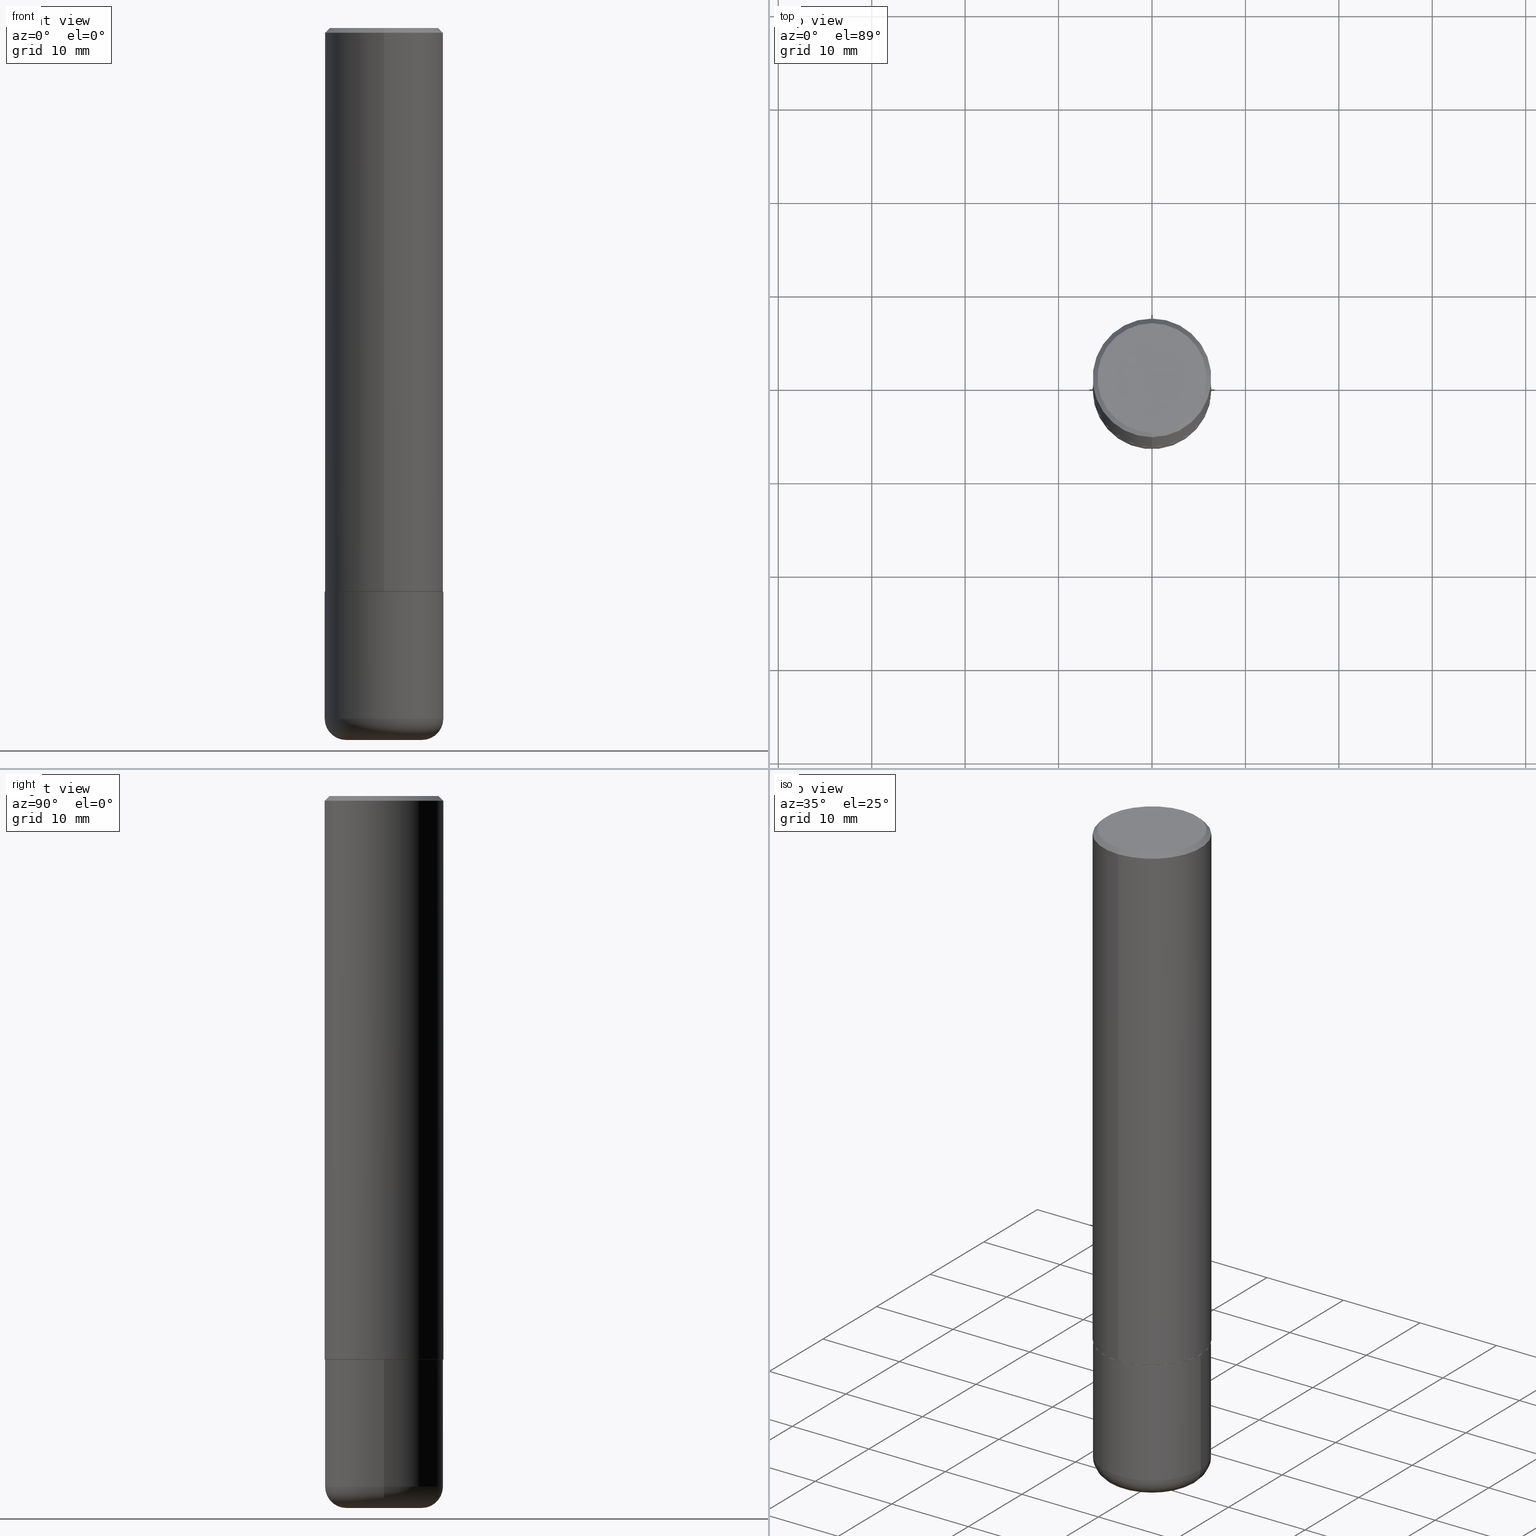
[diagram: canonical four-view strip — front | top / right | iso, engineering-drawing reading convention]
A machine part, canonical four-view strip (front | top / right | iso — engineering-drawing reading convention). The complete STEP part file that produces these views, byte-faithful:
ISO-10303-21;
HEADER;
FILE_DESCRIPTION (( 'STEP AP203' ),
    '1' );
FILE_NAME ('38536.STEP',
    '2024-03-03T03:38:36',
    ( '' ),
    ( '' ),
    'SwSTEP 2.0',
    'SolidWorks 2023',
    '' );
FILE_SCHEMA (( 'CONFIG_CONTROL_DESIGN' ));
ENDSEC;

DATA;
#1 = COORDINATED_UNIVERSAL_TIME_OFFSET ( 5, 0, .BEHIND. ) ;
#2 = DIRECTION ( 'NONE',  ( 1.000000000000000000, -6.982962677686266711E-15, 4.876176775795935793E-29 ) ) ;
#3 = PERSON_AND_ORGANIZATION ( #64, #338 ) ;
#4 = VECTOR ( 'NONE', #28, 39.37007874015748143 ) ;
#5 = CIRCLE ( 'NONE', #305, 0.2500000000000000000 ) ;
#6 = CARTESIAN_POINT ( 'NONE',  ( 7.116314225998749245E-29, -1.016021069603355467E-14, -2.910000000000000586 ) ) ;
#7 = EDGE_LOOP ( 'NONE', ( #324, #133 ) ) ;
#8 = APPROVAL_ROLE ( '' ) ;
#9 = CARTESIAN_POINT ( 'NONE',  ( 1.769251412042707241E-15, 0.2489999999999917002, -2.375000000000001332 ) ) ;
#10 = ORIENTED_EDGE ( 'NONE', *, *, #316, .T. ) ;
#11 = APPROVAL_ROLE ( '' ) ;
#12 = CARTESIAN_POINT ( 'NONE',  ( 0.1600000000000000033, -1.127748472446335797E-14, -2.910000000000000586 ) ) ;
#13 = ORIENTED_EDGE ( 'NONE', *, *, #195, .F. ) ;
#14 = LINE ( 'NONE', #205, #52 ) ;
#15 = VERTEX_POINT ( 'NONE', #150 ) ;
#16 = AXIS2_PLACEMENT_3D ( 'NONE', #144, #278, #414 ) ;
#17 = CC_DESIGN_APPROVAL ( #160, ( #186 ) ) ;
#18 = CC_DESIGN_DATE_AND_TIME_ASSIGNMENT ( #251, #392, ( #186 ) ) ;
#19 = DESIGN_CONTEXT ( 'detailed design', #191, 'design' ) ;
#20 = VECTOR ( 'NONE', #389, 39.37007874015748143 ) ;
#21 = PLANE ( 'NONE',  #337 ) ;
#22 = FACE_OUTER_BOUND ( 'NONE', #163, .T. ) ;
#23 = EDGE_CURVE ( 'NONE', #15, #108, #239, .T. ) ;
#24 = FACE_OUTER_BOUND ( 'NONE', #140, .T. ) ;
#25 = AXIS2_PLACEMENT_3D ( 'NONE', #162, #161, #127 ) ;
#26 = CIRCLE ( 'NONE', #283, 0.2500000000000000000 ) ;
#27 = DIRECTION ( 'NONE',  ( -6.982962677686266711E-15, -1.000000000000000000, 3.491481338843145583E-15 ) ) ;
#28 = DIRECTION ( 'NONE',  ( -2.444433044876418787E-29, 3.492964607989102264E-15, 1.000000000000000000 ) ) ;
#29 = PRODUCT_RELATED_PRODUCT_CATEGORY ( 'detail', '', ( #381 ) ) ;
#30 = DIRECTION ( 'NONE',  ( -6.982962677686265922E-15, -1.000000000000000000, 3.500180241882337261E-15 ) ) ;
#31 = DIRECTION ( 'NONE',  ( -2.445468806185136597E-29, 3.491481338843145583E-15, 1.000000000000000000 ) ) ;
#32 = FACE_OUTER_BOUND ( 'NONE', #81, .T. ) ;
#33 = AXIS2_PLACEMENT_3D ( 'NONE', #323, #293, #46 ) ;
#34 = APPROVAL_STATUS ( 'not_yet_approved' ) ;
#35 = LOCAL_TIME ( 22, 38, 36.00000000000000000, #355 ) ;
#36 = ADVANCED_BREP_SHAPE_REPRESENTATION ( '38536', ( #275, #413, #368 ), #69 ) ;
#37 = ADVANCED_FACE ( 'NONE', ( #335 ), #84, .T. ) ;
#38 = CARTESIAN_POINT ( 'NONE',  ( 5.803084048536618741E-29, -8.292297979366129591E-15, -2.374000000000000110 ) ) ;
#39 = EDGE_LOOP ( 'NONE', ( #49, #243 ) ) ;
#40 = PERSON_AND_ORGANIZATION ( #64, #338 ) ;
#41 = AXIS2_PLACEMENT_3D ( 'NONE', #145, #196, #55 ) ;
#42 = AXIS2_PLACEMENT_3D ( 'NONE', #94, #310, #149 ) ;
#43 = CARTESIAN_POINT ( 'NONE',  ( -1.738757706743822090E-15, -0.2490000000000082980, -2.374999999999999556 ) ) ;
#44 = ORIENTED_EDGE ( 'NONE', *, *, #252, .T. ) ;
#45 = APPROVAL ( #158, 'UNSPECIFIED' ) ;
#46 = DIRECTION ( 'NONE',  ( 1.000000000000000000, -6.982962677686266711E-15, 0.000000000000000000 ) ) ;
#47 = ORIENTED_EDGE ( 'NONE', *, *, #126, .T. ) ;
#48 = CARTESIAN_POINT ( 'NONE',  ( 1.776356839400280836E-15, 0.2499999999999919786, -2.374000000000000998 ) ) ;
#49 = ORIENTED_EDGE ( 'NONE', *, *, #59, .F. ) ;
#50 = VERTEX_POINT ( 'NONE', #60 ) ;
#51 = TOROIDAL_SURFACE ( 'NONE', #334, 0.1600000000000000033, 0.08999999999999964972 ) ;
#52 = VECTOR ( 'NONE', #130, 39.37007874015748143 ) ;
#53 = ORIENTED_EDGE ( 'NONE', *, *, #235, .T. ) ;
#54 = EDGE_CURVE ( 'NONE', #370, #394, #230, .T. ) ;
#55 = DIRECTION ( 'NONE',  ( 6.982962677686265922E-15, 1.000000000000000000, -3.500180241882337261E-15 ) ) ;
#56 = CARTESIAN_POINT ( 'NONE',  ( -1.745740669421567467E-15, -0.2500000000000001110, 8.732411519972759604E-16 ) ) ;
#57 = CYLINDRICAL_SURFACE ( 'NONE', #373, 0.2500000000000000000 ) ;
#58 =( NAMED_UNIT ( * ) PLANE_ANGLE_UNIT ( ) SI_UNIT ( $, .RADIAN. ) );
#59 = EDGE_CURVE ( 'NONE', #402, #222, #249, .T. ) ;
#60 = CARTESIAN_POINT ( 'NONE',  ( 0.2499999999999998335, -1.190595136545512292E-14, -2.910000000000000586 ) ) ;
#61 = CARTESIAN_POINT ( 'NONE',  ( 0.1600000000000000033, -1.159171804495923808E-14, -2.999999999999999556 ) ) ;
#62 = CARTESIAN_POINT ( 'NONE',  ( 7.116314225998749245E-29, -1.016021069603355467E-14, -2.910000000000000586 ) ) ;
#63 = CARTESIAN_POINT ( 'NONE',  ( 1.745740669421566875E-15, 0.2499999999999999167, -0.02000000000000093023 ) ) ;
#64 = PERSON ( 'UNSPECIFIED', 'UNSPECIFIED', 'UNSPECIFIED', ('UNSPECIFIED'), ('UNSPECIFIED'), ('UNSPECIFIED') ) ;
#65 = DIRECTION ( 'NONE',  ( -2.444433044876418787E-29, 3.492964607989102264E-15, 1.000000000000000000 ) ) ;
#66 = ADVANCED_FACE ( 'NONE', ( #122 ), #288, .T. ) ;
#67 = CIRCLE ( 'NONE', #300, 0.1600000000000000033 ) ;
#68 = DATE_TIME_ROLE ( 'classification_date' ) ;
#69 =( GEOMETRIC_REPRESENTATION_CONTEXT ( 3 ) GLOBAL_UNCERTAINTY_ASSIGNED_CONTEXT ( ( #408 ) ) GLOBAL_UNIT_ASSIGNED_CONTEXT ( ( #146, #58, #361 ) ) REPRESENTATION_CONTEXT ( 'NONE', 'WORKASPACE' ) );
#70 = SHAPE_DEFINITION_REPRESENTATION ( #352, #36 ) ;
#71 = ORIENTED_EDGE ( 'NONE', *, *, #286, .F. ) ;
#72 = SECURITY_CLASSIFICATION_LEVEL ( 'unclassified' ) ;
#73 = EDGE_CURVE ( 'NONE', #15, #256, #119, .T. ) ;
#74 = DIRECTION ( 'NONE',  ( -6.982962677686265922E-15, -1.000000000000000000, 3.492964607989102264E-15 ) ) ;
#75 = ORIENTED_EDGE ( 'NONE', *, *, #219, .F. ) ;
#76 = DATE_AND_TIME ( #132, #411 ) ;
#77 = AXIS2_PLACEMENT_3D ( 'NONE', #38, #65, #214 ) ;
#78 = CARTESIAN_POINT ( 'NONE',  ( -1.715124499442882299E-15, -0.2500000000000000555, -0.01999999999999918163 ) ) ;
#79 = ORIENTED_EDGE ( 'NONE', *, *, #154, .F. ) ;
#80 = FACE_OUTER_BOUND ( 'NONE', #341, .T. ) ;
#81 = EDGE_LOOP ( 'NONE', ( #10, #53, #109, #75 ) ) ;
#82 = ORIENTED_EDGE ( 'NONE', *, *, #147, .F. ) ;
#83 = ADVANCED_FACE ( 'NONE', ( #183 ), #417, .T. ) ;
#84 = CONICAL_SURFACE ( 'NONE', #236, 0.2500000000000000000, 0.7853981633974468357 ) ;
#85 = CC_DESIGN_APPROVAL ( #45, ( #143 ) ) ;
#86 = DIRECTION ( 'NONE',  ( -2.444433044876418506E-29, 3.492964607989102264E-15, 1.000000000000000000 ) ) ;
#87 = CARTESIAN_POINT ( 'NONE',  ( 5.805528481581495949E-29, -8.295790943974119208E-15, -2.375000000000000444 ) ) ;
#88 = AXIS2_PLACEMENT_3D ( 'NONE', #340, #152, #418 ) ;
#89 = CARTESIAN_POINT ( 'NONE',  ( 4.888866089752851166E-31, -6.985929215978223263E-17, -0.02000000000000005593 ) ) ;
#90 = CC_DESIGN_PERSON_AND_ORGANIZATION_ASSIGNMENT ( #327, #220, ( #186 ) ) ;
#91 = FACE_OUTER_BOUND ( 'NONE', #39, .T. ) ;
#92 = DIRECTION ( 'NONE',  ( -6.982962677686266711E-15, -1.000000000000000000, 3.492964607989102264E-15 ) ) ;
#93 = LOCAL_TIME ( 22, 38, 36.00000000000000000, #231 ) ;
#94 = CARTESIAN_POINT ( 'NONE',  ( 1.606081415867840476E-15, 0.2299999999999998990, -7.541233902495533824E-16 ) ) ;
#95 = ADVANCED_FACE ( 'NONE', ( #32 ), #410, .T. ) ;
#96 = APPLICATION_PROTOCOL_DEFINITION ( 'international standard', 'config_control_design', 1994, #209 ) ;
#97 = ORIENTED_EDGE ( 'NONE', *, *, #276, .T. ) ;
#98 = APPROVAL_DATE_TIME ( #76, #176 ) ;
#99 = EDGE_CURVE ( 'NONE', #261, #197, #242, .T. ) ;
#100 = DIRECTION ( 'NONE',  ( 1.000000000000000000, -6.982962677686271444E-15, 0.000000000000000000 ) ) ;
#101 = ORIENTED_EDGE ( 'NONE', *, *, #219, .T. ) ;
#102 = CALENDAR_DATE ( 2024, 2, 3 ) ;
#103 = CARTESIAN_POINT ( 'NONE',  ( 5.807988414689700538E-29, -8.292268179752471696E-15, -2.375000000000000000 ) ) ;
#104 = VERTEX_POINT ( 'NONE', #284 ) ;
#105 = PERSON_AND_ORGANIZATION ( #64, #338 ) ;
#106 = APPROVAL_PERSON_ORGANIZATION ( #105, #176, #8 ) ;
#107 = LINE ( 'NONE', #400, #345 ) ;
#108 = VERTEX_POINT ( 'NONE', #124 ) ;
#109 = ORIENTED_EDGE ( 'NONE', *, *, #73, .F. ) ;
#110 = ADVANCED_FACE ( 'NONE', ( #387 ), #51, .T. ) ;
#111 = AXIS2_PLACEMENT_3D ( 'NONE', #115, #204, #280 ) ;
#112 = AXIS2_PLACEMENT_3D ( 'NONE', #12, #27, #121 ) ;
#113 = EDGE_CURVE ( 'NONE', #104, #108, #289, .T. ) ;
#114 = ORIENTED_EDGE ( 'NONE', *, *, #99, .F. ) ;
#115 = CARTESIAN_POINT ( 'NONE',  ( 7.336406418555408669E-29, -1.047444401652943478E-14, -2.999999999999999556 ) ) ;
#116 = FACE_OUTER_BOUND ( 'NONE', #303, .T. ) ;
#117 = CARTESIAN_POINT ( 'NONE',  ( -2.408180616015999705E-45, 3.441161818287620017E-31, 9.851693917587945798E-17 ) ) ;
#118 = ORIENTED_EDGE ( 'NONE', *, *, #235, .F. ) ;
#119 = CIRCLE ( 'NONE', #77, 0.2500000000000002776 ) ;
#120 = VECTOR ( 'NONE', #181, 39.37007874015748143 ) ;
#121 = DIRECTION ( 'NONE',  ( 1.000000000000000000, -6.982962677686273810E-15, 0.000000000000000000 ) ) ;
#122 = FACE_OUTER_BOUND ( 'NONE', #265, .T. ) ;
#123 = DIRECTION ( 'NONE',  ( -6.982962677686265922E-15, -1.000000000000000000, 3.500180241882337261E-15 ) ) ;
#124 = CARTESIAN_POINT ( 'NONE',  ( -1.715124499442882299E-15, -0.2500000000000000555, -0.01999999999999918163 ) ) ;
#125 = CARTESIAN_POINT ( 'NONE',  ( 0.000000000000000000, 0.000000000000000000, 0.000000000000000000 ) ) ;
#126 = EDGE_CURVE ( 'NONE', #222, #402, #67, .T. ) ;
#127 = DIRECTION ( 'NONE',  ( -6.982962677686265133E-15, -1.000000000000000000, 3.291383124896702687E-15 ) ) ;
#128 = ADVANCED_FACE ( 'NONE', ( #116 ), #296, .F. ) ;
#129 = APPROVAL_DATE_TIME ( #285, #45 ) ;
#130 = DIRECTION ( 'NONE',  ( -2.445468806185136877E-29, 3.491481338843145188E-15, 1.000000000000000000 ) ) ;
#131 = EDGE_LOOP ( 'NONE', ( #118, #190, #101, #329 ) ) ;
#132 = CALENDAR_DATE ( 2024, 2, 3 ) ;
#133 = ORIENTED_EDGE ( 'NONE', *, *, #54, .T. ) ;
#134 = PERSON_AND_ORGANIZATION_ROLE ( 'creator' ) ;
#135 = CARTESIAN_POINT ( 'NONE',  ( -0.1600000000000000033, -9.023342318817394938E-15, -2.910000000000000586 ) ) ;
#136 = TOROIDAL_SURFACE ( 'NONE', #244, 0.1600000000000000033, 0.08999999999999964972 ) ;
#137 = ADVANCED_FACE ( 'NONE', ( #298 ), #21, .F. ) ;
#138 = CARTESIAN_POINT ( 'NONE',  ( -0.1600000000000000033, -8.860714747973291991E-15, -2.999999999999999556 ) ) ;
#139 = EDGE_LOOP ( 'NONE', ( #167, #360, #333, #363 ) ) ;
#140 = EDGE_LOOP ( 'NONE', ( #79, #47, #367, #13 ) ) ;
#141 = VECTOR ( 'NONE', #193, 39.37007874015748854 ) ;
#142 = EDGE_LOOP ( 'NONE', ( #215, #194, #174, #233 ) ) ;
#143 = PRODUCT_DEFINITION_FORMATION_WITH_SPECIFIED_SOURCE ( 'ANY', '', #381, .NOT_KNOWN. ) ;
#144 = CARTESIAN_POINT ( 'NONE',  ( 5.807988414689700538E-29, -8.292268179752471696E-15, -2.375000000000000000 ) ) ;
#145 = CARTESIAN_POINT ( 'NONE',  ( 4.888866089752851166E-31, -6.985929215978223263E-17, -0.02000000000000005593 ) ) ;
#146 =( CONVERSION_BASED_UNIT ( 'INCH', #350 ) LENGTH_UNIT ( ) NAMED_UNIT ( #153 ) );
#147 = EDGE_CURVE ( 'NONE', #50, #394, #107, .T. ) ;
#148 = EDGE_LOOP ( 'NONE', ( #346, #44, #172, #225 ) ) ;
#149 = DIRECTION ( 'NONE',  ( 6.982962677686265922E-15, 1.000000000000000000, -3.492964607989102264E-15 ) ) ;
#150 = CARTESIAN_POINT ( 'NONE',  ( -1.745740669421510471E-15, -0.2500000000000085487, -2.373999999999999222 ) ) ;
#151 = CARTESIAN_POINT ( 'NONE',  ( 4.888866089752851166E-31, -6.985929215978223263E-17, -0.02000000000000005593 ) ) ;
#152 = DIRECTION ( 'NONE',  ( 2.438088387897960049E-29, -3.491481338843145188E-15, -1.000000000000000000 ) ) ;
#153 = DIMENSIONAL_EXPONENTS ( 1.000000000000000000, 0.000000000000000000, 0.000000000000000000, 0.000000000000000000, 0.000000000000000000, 0.000000000000000000, 0.000000000000000000 ) ;
#154 = EDGE_CURVE ( 'NONE', #222, #187, #157, .T. ) ;
#155 = DIRECTION ( 'NONE',  ( -6.982962677686265133E-15, -1.000000000000000000, 3.291383124896702687E-15 ) ) ;
#156 = DIRECTION ( 'NONE',  ( -2.444433044876418787E-29, 3.492964607989102264E-15, 1.000000000000000000 ) ) ;
#157 = CIRCLE ( 'NONE', #164, 0.08999999999999964972 ) ;
#158 = APPROVAL_STATUS ( 'not_yet_approved' ) ;
#159 = CALENDAR_DATE ( 2024, 2, 3 ) ;
#160 = APPROVAL ( #34, 'UNSPECIFIED' ) ;
#161 = DIRECTION ( 'NONE',  ( -2.444433044876418787E-29, 3.492964607989102264E-15, 1.000000000000000000 ) ) ;
#162 = CARTESIAN_POINT ( 'NONE',  ( 5.805528481581495949E-29, -8.295790943974119208E-15, -2.375000000000000444 ) ) ;
#163 = EDGE_LOOP ( 'NONE', ( #390, #321 ) ) ;
#164 = AXIS2_PLACEMENT_3D ( 'NONE', #135, #336, #179 ) ;
#165 = CC_DESIGN_APPROVAL ( #176, ( #202 ) ) ;
#166 = DIRECTION ( 'NONE',  ( -6.982962677686265922E-15, -1.000000000000000000, 3.278217592397112312E-15 ) ) ;
#167 = ORIENTED_EDGE ( 'NONE', *, *, #252, .F. ) ;
#168 = APPROVAL_DATE_TIME ( #358, #160 ) ;
#169 = CARTESIAN_POINT ( 'NONE',  ( 7.336406418555408669E-29, -1.047444401652943478E-14, -2.999999999999999556 ) ) ;
#170 = EDGE_LOOP ( 'NONE', ( #234, #297, #391, #273 ) ) ;
#171 = CARTESIAN_POINT ( 'NONE',  ( -0.2499999999999998335, -8.383853856633305780E-15, -2.910000000000000586 ) ) ;
#172 = ORIENTED_EDGE ( 'NONE', *, *, #332, .F. ) ;
#173 = AXIS2_PLACEMENT_3D ( 'NONE', #348, #351, #2 ) ;
#174 = ORIENTED_EDGE ( 'NONE', *, *, #147, .T. ) ;
#175 = ORIENTED_EDGE ( 'NONE', *, *, #286, .T. ) ;
#176 = APPROVAL ( #253, 'UNSPECIFIED' ) ;
#177 = DIRECTION ( 'NONE',  ( -2.445468806185136597E-29, 3.491481338843145583E-15, 1.000000000000000000 ) ) ;
#178 = CIRCLE ( 'NONE', #318, 0.2500000000000002776 ) ;
#179 = DIRECTION ( 'NONE',  ( -1.000000000000000000, 7.105427357600996337E-15, 0.000000000000000000 ) ) ;
#180 = DIRECTION ( 'NONE',  ( 1.000000000000000000, -6.982962677686266711E-15, 4.876176775795935793E-29 ) ) ;
#181 = DIRECTION ( 'NONE',  ( 4.937700262164540154E-15, 0.7071067811865440200, -0.7071067811865510144 ) ) ;
#182 = DIRECTION ( 'NONE',  ( 1.000000000000000000, -6.982962677686265133E-15, 4.883557194083112340E-29 ) ) ;
#183 = FACE_OUTER_BOUND ( 'NONE', #139, .T. ) ;
#184 = AXIS2_PLACEMENT_3D ( 'NONE', #315, #221, #319 ) ;
#185 = CALENDAR_DATE ( 2024, 2, 3 ) ;
#186 = PRODUCT_DEFINITION ( 'UNKNOWN', '', #143, #19 ) ;
#187 = VERTEX_POINT ( 'NONE', #171 ) ;
#188 = PERSON_AND_ORGANIZATION ( #64, #338 ) ;
#189 = CARTESIAN_POINT ( 'NONE',  ( 1.776356839400251254E-15, 0.2500000000000001110, -8.732411519972759604E-16 ) ) ;
#190 = ORIENTED_EDGE ( 'NONE', *, *, #99, .T. ) ;
#191 = APPLICATION_CONTEXT ( 'configuration controlled 3d designs of mechanical parts and assemblies' ) ;
#192 = AXIS2_PLACEMENT_3D ( 'NONE', #87, #260, #359 ) ;
#193 = DIRECTION ( 'NONE',  ( 5.024295867787889629E-15, 0.7071067811865257013, 0.7071067811865691111 ) ) ;
#194 = ORIENTED_EDGE ( 'NONE', *, *, #195, .T. ) ;
#195 = EDGE_CURVE ( 'NONE', #187, #50, #325, .T. ) ;
#196 = DIRECTION ( 'NONE',  ( 2.444433044876418787E-29, -3.492964607989102264E-15, -1.000000000000000000 ) ) ;
#197 = VERTEX_POINT ( 'NONE', #362 ) ;
#198 = ORIENTED_EDGE ( 'NONE', *, *, #396, .F. ) ;
#199 = ORIENTED_EDGE ( 'NONE', *, *, #207, .T. ) ;
#200 = CLOSED_SHELL ( 'NONE', ( #66, #110, #137, #415, #343, #409 ) ) ;
#201 = ADVANCED_FACE ( 'NONE', ( #80 ), #213, .T. ) ;
#202 = SECURITY_CLASSIFICATION ( '', '', #72 ) ;
#203 = DIRECTION ( 'NONE',  ( -2.445468806185136877E-29, 3.491481338843145188E-15, 1.000000000000000000 ) ) ;
#204 = DIRECTION ( 'NONE',  ( -2.445468806185136597E-29, 3.491481338843145583E-15, 1.000000000000000000 ) ) ;
#205 = CARTESIAN_POINT ( 'NONE',  ( -0.2500000000000000000, 1.776356839400250465E-15, -1.229733772563726445E-29 ) ) ;
#206 = AXIS2_PLACEMENT_3D ( 'NONE', #228, #177, #306 ) ;
#207 = EDGE_CURVE ( 'NONE', #187, #370, #14, .T. ) ;
#208 = CARTESIAN_POINT ( 'NONE',  ( 0.000000000000000000, 0.000000000000000000, 0.000000000000000000 ) ) ;
#209 = APPLICATION_CONTEXT ( 'configuration controlled 3d designs of mechanical parts and assemblies' ) ;
#210 = DIRECTION ( 'NONE',  ( 2.444433044876418787E-29, -3.492964607989102264E-15, -1.000000000000000000 ) ) ;
#211 = CARTESIAN_POINT ( 'NONE',  ( 4.888866089752851166E-31, -6.985929215978223263E-17, -0.02000000000000005593 ) ) ;
#212 = CARTESIAN_POINT ( 'NONE',  ( -0.2500000000000000000, -7.449882598492762717E-15, -2.375000000000000000 ) ) ;
#213 = CONICAL_SURFACE ( 'NONE', #41, 0.2500000000000000000, 0.7853981633974468357 ) ;
#214 = DIRECTION ( 'NONE',  ( -6.982962677686265922E-15, -1.000000000000000000, 3.278217592397112312E-15 ) ) ;
#215 = ORIENTED_EDGE ( 'NONE', *, *, #207, .F. ) ;
#216 = APPLICATION_PROTOCOL_DEFINITION ( 'international standard', 'config_control_design', 1994, #191 ) ;
#217 = CARTESIAN_POINT ( 'NONE',  ( 5.805528481581495949E-29, -8.295790943974119208E-15, -2.375000000000000444 ) ) ;
#218 = AXIS2_PLACEMENT_3D ( 'NONE', #407, #31, #307 ) ;
#219 = EDGE_CURVE ( 'NONE', #197, #15, #238, .T. ) ;
#220 = PERSON_AND_ORGANIZATION_ROLE ( 'creator' ) ;
#221 = DIRECTION ( 'NONE',  ( -2.444433044876418787E-29, 3.492964607989102264E-15, 1.000000000000000000 ) ) ;
#222 = VERTEX_POINT ( 'NONE', #138 ) ;
#223 = DIRECTION ( 'NONE',  ( 1.000000000000000000, 0.000000000000000000, 0.000000000000000000 ) ) ;
#224 = DIRECTION ( 'NONE',  ( -1.000000000000000000, 6.982962677686265922E-15, -4.876176775795935793E-29 ) ) ;
#225 = ORIENTED_EDGE ( 'NONE', *, *, #23, .F. ) ;
#226 = PERSON_AND_ORGANIZATION ( #64, #338 ) ;
#227 = ADVANCED_FACE ( 'NONE', ( #330 ), #378, .T. ) ;
#228 = CARTESIAN_POINT ( 'NONE',  ( 7.116314225998749245E-29, -1.016021069603355467E-14, -2.910000000000000586 ) ) ;
#229 = ORIENTED_EDGE ( 'NONE', *, *, #113, .F. ) ;
#230 = CIRCLE ( 'NONE', #16, 0.2500000000000000000 ) ;
#231 = COORDINATED_UNIVERSAL_TIME_OFFSET ( 5, 0, .BEHIND. ) ;
#232 = CARTESIAN_POINT ( 'NONE',  ( 1.772804125721508928E-15, 0.2489999999999917280, -2.375000000000001332 ) ) ;
#233 = ORIENTED_EDGE ( 'NONE', *, *, #54, .F. ) ;
#234 = ORIENTED_EDGE ( 'NONE', *, *, #309, .F. ) ;
#235 = EDGE_CURVE ( 'NONE', #261, #256, #339, .T. ) ;
#236 = AXIS2_PLACEMENT_3D ( 'NONE', #151, #210, #342 ) ;
#237 = CIRCLE ( 'NONE', #326, 0.2489999999999999991 ) ;
#238 = LINE ( 'NONE', #43, #268 ) ;
#239 = LINE ( 'NONE', #56, #4 ) ;
#240 = EDGE_CURVE ( 'NONE', #256, #15, #178, .T. ) ;
#241 = DIRECTION ( 'NONE',  ( -2.444433044876418787E-29, 3.492964607989102264E-15, 1.000000000000000000 ) ) ;
#242 = CIRCLE ( 'NONE', #25, 0.2489999999999999991 ) ;
#243 = ORIENTED_EDGE ( 'NONE', *, *, #126, .F. ) ;
#244 = AXIS2_PLACEMENT_3D ( 'NONE', #62, #382, #182 ) ;
#245 = LINE ( 'NONE', #63, #120 ) ;
#246 = CC_DESIGN_DATE_AND_TIME_ASSIGNMENT ( #322, #68, ( #202 ) ) ;
#247 = CARTESIAN_POINT ( 'NONE',  ( 1.745740669421566875E-15, 0.2499999999999999167, -0.02000000000000093023 ) ) ;
#248 = PLANE ( 'NONE',  #88 ) ;
#249 = CIRCLE ( 'NONE', #111, 0.1600000000000000033 ) ;
#250 = CARTESIAN_POINT ( 'NONE',  ( -2.408180616015999705E-45, 3.441161818287620017E-31, 9.851693917587945798E-17 ) ) ;
#251 = DATE_AND_TIME ( #159, #263 ) ;
#252 = EDGE_CURVE ( 'NONE', #256, #302, #328, .T. ) ;
#253 = APPROVAL_STATUS ( 'not_yet_approved' ) ;
#254 = PERSON_AND_ORGANIZATION ( #64, #338 ) ;
#255 = CARTESIAN_POINT ( 'NONE',  ( 5.803084048536618741E-29, -8.292297979366129591E-15, -2.374000000000000110 ) ) ;
#256 = VERTEX_POINT ( 'NONE', #48 ) ;
#257 = MECHANICAL_CONTEXT ( 'NONE', #209, 'mechanical' ) ;
#258 = ORIENTED_EDGE ( 'NONE', *, *, #267, .F. ) ;
#259 = PERSON_AND_ORGANIZATION ( #64, #338 ) ;
#260 = DIRECTION ( 'NONE',  ( -2.444433044876418787E-29, 3.492964607989102264E-15, 1.000000000000000000 ) ) ;
#261 = VERTEX_POINT ( 'NONE', #232 ) ;
#262 = CIRCLE ( 'NONE', #112, 0.08999999999999964972 ) ;
#263 = LOCAL_TIME ( 22, 38, 36.00000000000000000, #1 ) ;
#264 = DIRECTION ( 'NONE',  ( -2.444433044876418787E-29, 3.492964607989102264E-15, 1.000000000000000000 ) ) ;
#265 = EDGE_LOOP ( 'NONE', ( #175, #199, #258, #82 ) ) ;
#266 = ORIENTED_EDGE ( 'NONE', *, *, #154, .T. ) ;
#267 = EDGE_CURVE ( 'NONE', #394, #370, #282, .T. ) ;
#268 = VECTOR ( 'NONE', #371, 39.37007874015748854 ) ;
#269 = CIRCLE ( 'NONE', #364, 0.2299999999999998990 ) ;
#270 = DIRECTION ( 'NONE',  ( 2.438088387897960049E-29, -3.491481338843145188E-15, -1.000000000000000000 ) ) ;
#271 = EDGE_CURVE ( 'NONE', #402, #50, #262, .T. ) ;
#272 = DIRECTION ( 'NONE',  ( -2.444433044876418787E-29, 3.492964607989102264E-15, 1.000000000000000000 ) ) ;
#273 = ORIENTED_EDGE ( 'NONE', *, *, #276, .F. ) ;
#274 = FACE_OUTER_BOUND ( 'NONE', #148, .T. ) ;
#275 = MANIFOLD_SOLID_BREP ( 'Body-Move/Copy2[1]', #200 ) ;
#276 = EDGE_CURVE ( 'NONE', #398, #302, #245, .T. ) ;
#277 = CARTESIAN_POINT ( 'NONE',  ( 0.2500000000000000000, -1.003800884917403837E-14, -2.375000000000000000 ) ) ;
#278 = DIRECTION ( 'NONE',  ( -2.445468806185136597E-29, 3.491481338843145583E-15, 1.000000000000000000 ) ) ;
#279 = FACE_OUTER_BOUND ( 'NONE', #142, .T. ) ;
#280 = DIRECTION ( 'NONE',  ( 1.000000000000000000, -6.982962677686271444E-15, 0.000000000000000000 ) ) ;
#281 = CARTESIAN_POINT ( 'NONE',  ( 5.805528481581495949E-29, -8.295790943974119208E-15, -2.375000000000000444 ) ) ;
#282 = CIRCLE ( 'NONE', #33, 0.2500000000000000000 ) ;
#283 = AXIS2_PLACEMENT_3D ( 'NONE', #89, #344, #123 ) ;
#284 = CARTESIAN_POINT ( 'NONE',  ( -1.646519519465166770E-15, -0.2299999999999998990, 9.018987990133727913E-16 ) ) ;
#285 = DATE_AND_TIME ( #292, #405 ) ;
#286 = EDGE_CURVE ( 'NONE', #50, #187, #311, .T. ) ;
#287 = DIRECTION ( 'NONE',  ( 0.000000000000000000, 0.000000000000000000, 1.000000000000000000 ) ) ;
#288 = CYLINDRICAL_SURFACE ( 'NONE', #173, 0.2500000000000000000 ) ;
#289 = LINE ( 'NONE', #78, #385 ) ;
#290 = AXIS2_PLACEMENT_3D ( 'NONE', #365, #86, #74 ) ;
#291 = AXIS2_PLACEMENT_3D ( 'NONE', #208, #377, #92 ) ;
#292 = CALENDAR_DATE ( 2024, 2, 3 ) ;
#293 = DIRECTION ( 'NONE',  ( -2.445468806185136597E-29, 3.491481338843145583E-15, 1.000000000000000000 ) ) ;
#294 = ORIENTED_EDGE ( 'NONE', *, *, #271, .F. ) ;
#295 = CARTESIAN_POINT ( 'NONE',  ( 0.000000000000000000, 0.000000000000000000, 0.000000000000000000 ) ) ;
#296 = PLANE ( 'NONE',  #290 ) ;
#297 = ORIENTED_EDGE ( 'NONE', *, *, #113, .T. ) ;
#298 = FACE_OUTER_BOUND ( 'NONE', #7, .T. ) ;
#299 = ORIENTED_EDGE ( 'NONE', *, *, #375, .T. ) ;
#300 = AXIS2_PLACEMENT_3D ( 'NONE', #169, #406, #100 ) ;
#301 = APPROVAL_PERSON_ORGANIZATION ( #226, #45, #388 ) ;
#302 = VERTEX_POINT ( 'NONE', #247 ) ;
#303 = EDGE_LOOP ( 'NONE', ( #401, #114 ) ) ;
#304 = CC_DESIGN_PERSON_AND_ORGANIZATION_ASSIGNMENT ( #3, #134, ( #143 ) ) ;
#305 = AXIS2_PLACEMENT_3D ( 'NONE', #211, #312, #30 ) ;
#306 = DIRECTION ( 'NONE',  ( 1.000000000000000000, -6.982962677686270655E-15, 0.000000000000000000 ) ) ;
#307 = DIRECTION ( 'NONE',  ( 1.000000000000000000, -6.982962677686270655E-15, 0.000000000000000000 ) ) ;
#308 =( LENGTH_UNIT ( ) NAMED_UNIT ( * ) SI_UNIT ( $, .METRE. ) );
#309 = EDGE_CURVE ( 'NONE', #104, #398, #386, .T. ) ;
#310 = DIRECTION ( 'NONE',  ( 2.444433044876418506E-29, -3.492964607989102264E-15, -1.000000000000000000 ) ) ;
#311 = CIRCLE ( 'NONE', #218, 0.2500000000000000000 ) ;
#312 = DIRECTION ( 'NONE',  ( -2.444433044876418787E-29, 3.492964607989102264E-15, 1.000000000000000000 ) ) ;
#313 = DIRECTION ( 'NONE',  ( -6.982962677686265133E-15, -1.000000000000000000, 3.291383124896702687E-15 ) ) ;
#314 = DIRECTION ( 'NONE',  ( -6.982962677686265922E-15, -1.000000000000000000, 3.492964607989102264E-15 ) ) ;
#315 = CARTESIAN_POINT ( 'NONE',  ( 0.000000000000000000, 0.000000000000000000, 0.000000000000000000 ) ) ;
#316 = EDGE_CURVE ( 'NONE', #197, #261, #237, .T. ) ;
#317 = PERSON_AND_ORGANIZATION_ROLE ( 'design_owner' ) ;
#318 = AXIS2_PLACEMENT_3D ( 'NONE', #255, #264, #166 ) ;
#319 = DIRECTION ( 'NONE',  ( -6.982962677686266711E-15, -1.000000000000000000, 3.492964607989102264E-15 ) ) ;
#320 = CC_DESIGN_PERSON_AND_ORGANIZATION_ASSIGNMENT ( #259, #353, ( #202 ) ) ;
#321 = ORIENTED_EDGE ( 'NONE', *, *, #309, .T. ) ;
#322 = DATE_AND_TIME ( #185, #35 ) ;
#323 = CARTESIAN_POINT ( 'NONE',  ( 5.807988414689700538E-29, -8.292268179752471696E-15, -2.375000000000000000 ) ) ;
#324 = ORIENTED_EDGE ( 'NONE', *, *, #267, .T. ) ;
#325 = CIRCLE ( 'NONE', #206, 0.2500000000000000000 ) ;
#326 = AXIS2_PLACEMENT_3D ( 'NONE', #281, #272, #155 ) ;
#327 = PERSON_AND_ORGANIZATION ( #64, #338 ) ;
#328 = LINE ( 'NONE', #189, #20 ) ;
#329 = ORIENTED_EDGE ( 'NONE', *, *, #240, .F. ) ;
#330 = FACE_OUTER_BOUND ( 'NONE', #131, .T. ) ;
#331 = EDGE_LOOP ( 'NONE', ( #357, #266, #71, #294 ) ) ;
#332 = EDGE_CURVE ( 'NONE', #108, #302, #5, .T. ) ;
#333 = ORIENTED_EDGE ( 'NONE', *, *, #23, .T. ) ;
#334 = AXIS2_PLACEMENT_3D ( 'NONE', #6, #397, #393 ) ;
#335 = FACE_OUTER_BOUND ( 'NONE', #170, .T. ) ;
#336 = DIRECTION ( 'NONE',  ( 7.105427357601001859E-15, 1.000000000000000000, -3.491481338843145583E-15 ) ) ;
#337 = AXIS2_PLACEMENT_3D ( 'NONE', #103, #270, #224 ) ;
#338 = ORGANIZATION ( 'UNSPECIFIED', 'UNSPECIFIED', '' ) ;
#339 = LINE ( 'NONE', #9, #141 ) ;
#340 = CARTESIAN_POINT ( 'NONE',  ( 1.449005363638153220E-28, -2.300140402884442060E-16, -2.999999999999999556 ) ) ;
#341 = EDGE_LOOP ( 'NONE', ( #229, #198, #97, #299 ) ) ;
#342 = DIRECTION ( 'NONE',  ( 6.982962677686265922E-15, 1.000000000000000000, -3.500180241882337261E-15 ) ) ;
#343 = ADVANCED_FACE ( 'NONE', ( #24 ), #136, .T. ) ;
#344 = DIRECTION ( 'NONE',  ( -2.444433044876418787E-29, 3.492964607989102264E-15, 1.000000000000000000 ) ) ;
#345 = VECTOR ( 'NONE', #203, 39.37007874015748143 ) ;
#346 = ORIENTED_EDGE ( 'NONE', *, *, #73, .T. ) ;
#347 = CYLINDRICAL_SURFACE ( 'NONE', #291, 0.2500000000000001110 ) ;
#348 = CARTESIAN_POINT ( 'NONE',  ( 0.000000000000000000, 0.000000000000000000, 0.000000000000000000 ) ) ;
#349 = ADVANCED_FACE ( 'NONE', ( #274 ), #347, .T. ) ;
#350 = LENGTH_MEASURE_WITH_UNIT ( LENGTH_MEASURE( 0.02539999999999999897 ), #308 );
#351 = DIRECTION ( 'NONE',  ( -2.445468806185136597E-29, 3.491481338843145583E-15, 1.000000000000000000 ) ) ;
#352 = PRODUCT_DEFINITION_SHAPE ( 'NONE', 'NONE',  #186 ) ;
#353 = PERSON_AND_ORGANIZATION_ROLE ( 'classification_officer' ) ;
#354 = AXIS2_PLACEMENT_3D ( 'NONE', #250, #241, #379 ) ;
#355 = COORDINATED_UNIVERSAL_TIME_OFFSET ( 5, 0, .BEHIND. ) ;
#356 = CC_DESIGN_PERSON_AND_ORGANIZATION_ASSIGNMENT ( #254, #383, ( #143 ) ) ;
#357 = ORIENTED_EDGE ( 'NONE', *, *, #59, .T. ) ;
#358 = DATE_AND_TIME ( #102, #93 ) ;
#359 = DIRECTION ( 'NONE',  ( -6.982962677686265133E-15, -1.000000000000000000, 3.291383124896702687E-15 ) ) ;
#360 = ORIENTED_EDGE ( 'NONE', *, *, #240, .T. ) ;
#361 =( NAMED_UNIT ( * ) SI_UNIT ( $, .STERADIAN. ) SOLID_ANGLE_UNIT ( ) );
#362 = CARTESIAN_POINT ( 'NONE',  ( -1.738757706743822090E-15, -0.2490000000000082980, -2.374999999999999556 ) ) ;
#363 = ORIENTED_EDGE ( 'NONE', *, *, #375, .F. ) ;
#364 = AXIS2_PLACEMENT_3D ( 'NONE', #117, #376, #314 ) ;
#365 = CARTESIAN_POINT ( 'NONE',  ( 5.805528481581494828E-29, -8.295790943974117630E-15, -2.375000000000000000 ) ) ;
#366 = ADVANCED_FACE ( 'NONE', ( #22 ), #374, .F. ) ;
#367 = ORIENTED_EDGE ( 'NONE', *, *, #271, .T. ) ;
#368 = AXIS2_PLACEMENT_3D ( 'NONE', #295, #287, #223 ) ;
#369 = DIRECTION ( 'NONE',  ( -4.851104656540956386E-15, -0.7071067811865489050, -0.7071067811865461294 ) ) ;
#370 = VERTEX_POINT ( 'NONE', #212 ) ;
#371 = DIRECTION ( 'NONE',  ( -4.937700262164378437E-15, -0.7071067811865208164, 0.7071067811865739960 ) ) ;
#372 = CLOSED_SHELL ( 'NONE', ( #95, #349, #37, #201, #83, #227, #128, #366 ) ) ;
#373 = AXIS2_PLACEMENT_3D ( 'NONE', #125, #416, #180 ) ;
#374 = PLANE ( 'NONE',  #42 ) ;
#375 = EDGE_CURVE ( 'NONE', #302, #108, #26, .T. ) ;
#376 = DIRECTION ( 'NONE',  ( -2.444433044876418787E-29, 3.492964607989102264E-15, 1.000000000000000000 ) ) ;
#377 = DIRECTION ( 'NONE',  ( -2.444433044876418787E-29, 3.492964607989102264E-15, 1.000000000000000000 ) ) ;
#378 = CONICAL_SURFACE ( 'NONE', #192, 0.2489999999999999991, 0.7853981633974141952 ) ;
#379 = DIRECTION ( 'NONE',  ( -6.982962677686265922E-15, -1.000000000000000000, 3.492964607989102264E-15 ) ) ;
#380 = CC_DESIGN_SECURITY_CLASSIFICATION ( #202, ( #143 ) ) ;
#381 = PRODUCT ( '38536', '38536', '', ( #257 ) ) ;
#382 = DIRECTION ( 'NONE',  ( -2.445468806185136597E-29, 3.491481338843145583E-15, 1.000000000000000000 ) ) ;
#383 = PERSON_AND_ORGANIZATION_ROLE ( 'design_supplier' ) ;
#384 = COORDINATED_UNIVERSAL_TIME_OFFSET ( 5, 0, .BEHIND. ) ;
#385 = VECTOR ( 'NONE', #369, 39.37007874015748143 ) ;
#386 = CIRCLE ( 'NONE', #354, 0.2299999999999998990 ) ;
#387 = FACE_OUTER_BOUND ( 'NONE', #331, .T. ) ;
#388 = APPROVAL_ROLE ( '' ) ;
#389 = DIRECTION ( 'NONE',  ( -2.444433044876418787E-29, 3.492964607989102264E-15, 1.000000000000000000 ) ) ;
#390 = ORIENTED_EDGE ( 'NONE', *, *, #396, .T. ) ;
#391 = ORIENTED_EDGE ( 'NONE', *, *, #332, .T. ) ;
#392 = DATE_TIME_ROLE ( 'creation_date' ) ;
#393 = DIRECTION ( 'NONE',  ( 1.000000000000000000, -6.982962677686265133E-15, 4.883557194083112340E-29 ) ) ;
#394 = VERTEX_POINT ( 'NONE', #277 ) ;
#395 = COORDINATED_UNIVERSAL_TIME_OFFSET ( 5, 0, .BEHIND. ) ;
#396 = EDGE_CURVE ( 'NONE', #398, #104, #269, .T. ) ;
#397 = DIRECTION ( 'NONE',  ( -2.445468806185136597E-29, 3.491481338843145583E-15, 1.000000000000000000 ) ) ;
#398 = VERTEX_POINT ( 'NONE', #412 ) ;
#399 = APPROVAL_PERSON_ORGANIZATION ( #188, #160, #11 ) ;
#400 = CARTESIAN_POINT ( 'NONE',  ( 0.2500000000000000000, -1.745740669421566678E-15, 1.219044193948983948E-29 ) ) ;
#401 = ORIENTED_EDGE ( 'NONE', *, *, #316, .F. ) ;
#402 = VERTEX_POINT ( 'NONE', #61 ) ;
#403 = CC_DESIGN_PERSON_AND_ORGANIZATION_ASSIGNMENT ( #40, #317, ( #381 ) ) ;
#404 = AXIS2_PLACEMENT_3D ( 'NONE', #217, #156, #313 ) ;
#405 = LOCAL_TIME ( 22, 38, 36.00000000000000000, #395 ) ;
#406 = DIRECTION ( 'NONE',  ( -2.445468806185136597E-29, 3.491481338843145583E-15, 1.000000000000000000 ) ) ;
#407 = CARTESIAN_POINT ( 'NONE',  ( 7.116314225998749245E-29, -1.016021069603355467E-14, -2.910000000000000586 ) ) ;
#408 = UNCERTAINTY_MEASURE_WITH_UNIT (LENGTH_MEASURE( 1.000000000000000082E-05 ), #146, 'distance_accuracy_value', 'NONE');
#409 = ADVANCED_FACE ( 'NONE', ( #91 ), #248, .T. ) ;
#410 = CONICAL_SURFACE ( 'NONE', #404, 0.2489999999999999991, 0.7853981633974141952 ) ;
#411 = LOCAL_TIME ( 22, 38, 36.00000000000000000, #384 ) ;
#412 = CARTESIAN_POINT ( 'NONE',  ( 1.675911042644703774E-15, 0.2299999999999998990, -7.048649206616136781E-16 ) ) ;
#413 = MANIFOLD_SOLID_BREP ( 'Body-Move/Copy2[2]', #372 ) ;
#414 = DIRECTION ( 'NONE',  ( 1.000000000000000000, -6.982962677686266711E-15, 0.000000000000000000 ) ) ;
#415 = ADVANCED_FACE ( 'NONE', ( #279 ), #57, .T. ) ;
#416 = DIRECTION ( 'NONE',  ( -2.445468806185136597E-29, 3.491481338843145583E-15, 1.000000000000000000 ) ) ;
#417 = CYLINDRICAL_SURFACE ( 'NONE', #184, 0.2500000000000001110 ) ;
#418 = DIRECTION ( 'NONE',  ( -1.000000000000000000, 6.982962677686265922E-15, -4.876176775795935793E-29 ) ) ;
ENDSEC;
END-ISO-10303-21;
